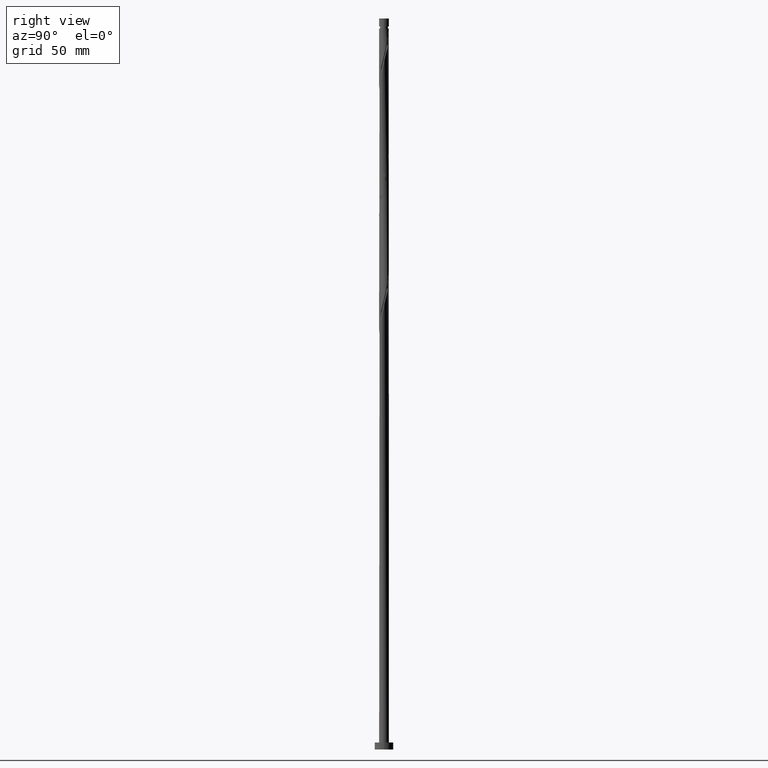
[diagram: clean part render]
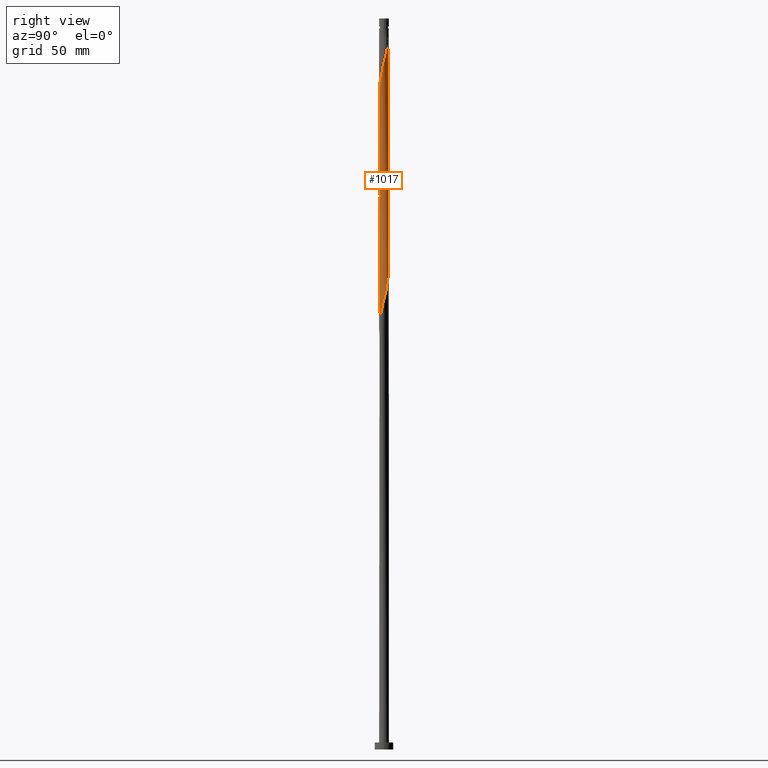
[diagram: same view with one face highlighted and labeled with its STEP entity id]
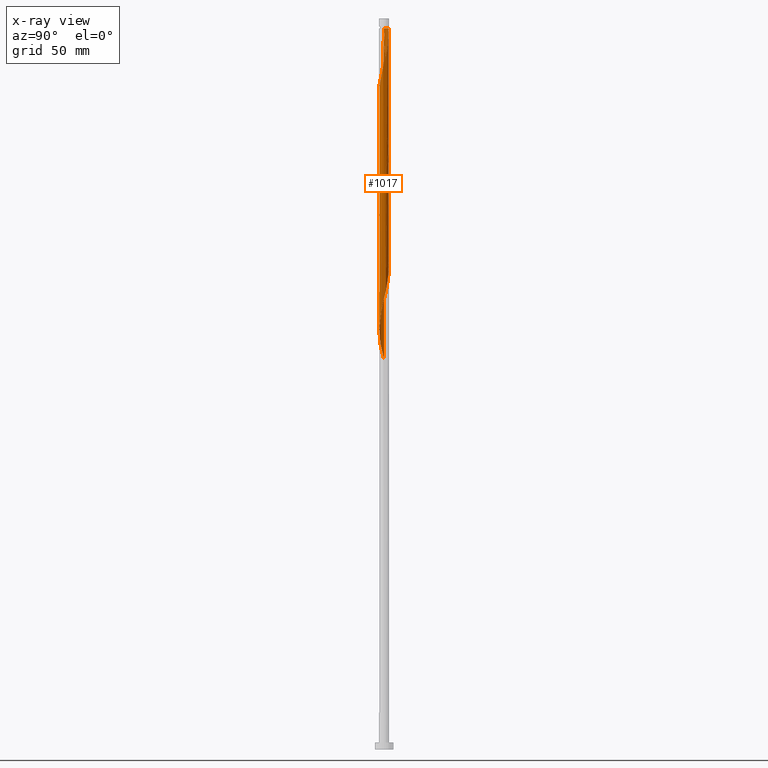
[diagram: x-ray of the same camera — body ghosted, the highlighted face saturated]
A machine part, right view. The second image highlights one B-rep face of the part: STEP entity #1017.
The next image is the same camera in x-ray: the body ghosted, the highlighted face saturated — about 0% of this face is hidden behind the body in this view.
In plain terms, the highlighted cylindrical surface (bore or boss wall) has radius 2.1 mm, axis along (-0, -0, -1).
Its self-contained STEP definition (entity closure, byte-faithful):
#5 = CARTESIAN_POINT ( 'NONE',  ( -1.529844344593004113, 1.457930751211417686, 214.1405337602938630 ) ) ;
#7 = CARTESIAN_POINT ( 'NONE',  ( -1.529844344593006999, -1.457930751211418796, 276.0155337602937493 ) ) ;
#14 = CARTESIAN_POINT ( 'NONE',  ( -1.348456092513518279, 1.609865263481131681, 213.2030337602938346 ) ) ;
#16 = CARTESIAN_POINT ( 'NONE',  ( 1.167067840434034665, 1.761799775750848118, 304.1405337602938062 ) ) ;
#23 = CARTESIAN_POINT ( 'NONE',  ( -1.457930751211417686, -1.529844344593004113, 227.2655337602938630 ) ) ;
#36 = CARTESIAN_POINT ( 'NONE',  ( 0.05053085170578196228, -2.099391967457693298, 233.8280337602938346 ) ) ;
#37 = CARTESIAN_POINT ( 'NONE',  ( -1.815908065240426472, -1.080954991017605060, 274.1405337602938062 ) ) ;
#45 = CARTESIAN_POINT ( 'NONE',  ( 0.2870755166819183857, -2.093698507840346945, 234.7655337602938346 ) ) ;
#46 = CARTESIAN_POINT ( 'NONE',  ( 2.105085427075044979, 0.1860138132703540170, 296.6405337602938630 ) ) ;
#54 = CARTESIAN_POINT ( 'NONE',  ( -1.269442871114510929, -1.672876204916714071, 175.7030337602938062 ) ) ;
#55 = CARTESIAN_POINT ( 'NONE',  ( -2.100000000000000089, 0.000000000000000000, 315.0000000000000000 ) ) ;
#62 = CARTESIAN_POINT ( 'NONE',  ( -1.869562289324891768, -0.9564187609694146941, 171.9530337602938630 ) ) ;
#63 = DIRECTION ( 'NONE',  ( -0.000000000000000000, -0.000000000000000000, -1.000000000000000000 ) ) ;
#69 = CARTESIAN_POINT ( 'NONE',  ( 2.010914572924957788, -0.6497756338992118907, 191.6405337602938346 ) ) ;
#78 = CARTESIAN_POINT ( 'NONE',  ( 2.099999999999999645, 3.156801099802694981E-15, 246.7525508381999089 ) ) ;
#85 = CARTESIAN_POINT ( 'NONE',  ( 1.672876204916714071, -1.269442871114510929, 188.8280337602938346 ) ) ;
#100 = CARTESIAN_POINT ( 'NONE',  ( -2.010914572924957788, 0.6497756338992114467, 270.3905337602938062 ) ) ;
#137 = CARTESIAN_POINT ( 'NONE',  ( -0.6497756338992115577, -2.010914572924957788, 231.0155337602938346 ) ) ;
#146 = CARTESIAN_POINT ( 'NONE',  ( -2.100000000000003197, 1.302273739753111854E-15, 269.6535166823878740 ) ) ;
#147 = CARTESIAN_POINT ( 'NONE',  ( 2.058000000000002938, 0.4178947235847829123, 297.5780337602939767 ) ) ;
#157 = CARTESIAN_POINT ( 'NONE',  ( 0.7457696815047972771, -1.977324802898936973, 236.6405337602938346 ) ) ;
#159 = CARTESIAN_POINT ( 'NONE',  ( 1.672876204916717180, 1.269442871114512705, 301.3280337602938062 ) ) ;
#162 = ORIENTED_EDGE ( 'NONE', *, *, #303, .T. ) ;
#166 = CARTESIAN_POINT ( 'NONE',  ( 1.269442871114511151, 1.672876204916714071, 201.9530337602938346 ) ) ;
#171 = VERTEX_POINT ( 'NONE', #1640 ) ;
#173 = DIRECTION ( 'NONE',  ( -0.000000000000000000, -0.000000000000000000, -1.000000000000000000 ) ) ;
#177 = CARTESIAN_POINT ( 'NONE',  ( -0.7457696815047991645, -1.977324802898939637, 279.7655337602938630 ) ) ;
#186 = CARTESIAN_POINT ( 'NONE',  ( -2.058000000000002938, -0.4178947235847831898, 271.3280337602938630 ) ) ;
#195 = CARTESIAN_POINT ( 'NONE',  ( 0.05053085170578196228, -2.099391967457693298, 181.3280337602938346 ) ) ;
#207 = CARTESIAN_POINT ( 'NONE',  ( -0.5164225990933580812, 2.035511655369642181, 261.9530337602938630 ) ) ;
#214 = CARTESIAN_POINT ( 'NONE',  ( 2.099999999999999645, 0.02526908404941727998, 246.8529135264250272 ) ) ;
#221 = CARTESIAN_POINT ( 'NONE',  ( -1.167067840434032222, 1.761799775750846120, 264.7655337602938062 ) ) ;
#228 = CARTESIAN_POINT ( 'NONE',  ( 1.761799775750846120, 1.167067840434032222, 251.6405337602938914 ) ) ;
#269 = CARTESIAN_POINT ( 'NONE',  ( 2.099999999999999645, 3.156801099802694981E-15, 246.7525508381999373 ) ) ;
#276 = CARTESIAN_POINT ( 'NONE',  ( 0.4178947235847834119, 2.057999999999998941, 205.7030337602938630 ) ) ;
#279 = CARTESIAN_POINT ( 'NONE',  ( 2.035511655369645290, -0.5164225990933597465, 293.8280337602938630 ) ) ;
#285 = CARTESIAN_POINT ( 'NONE',  ( 2.100000000000000089, -0.2110579412044373271, 245.9142797592363081 ) ) ;
#286 = CARTESIAN_POINT ( 'NONE',  ( 1.977324802898939637, -0.7457696815047991645, 292.8905337602938630 ) ) ;
#294 = CARTESIAN_POINT ( 'NONE',  ( 0.9564187609694145831, -1.869562289324891768, 237.5780337602938630 ) ) ;
#303 = EDGE_CURVE ( 'NONE', #171, #1288, #1602, .T. ) ;
#305 = CARTESIAN_POINT ( 'NONE',  ( 2.093698507840346501, 0.2870755166819183857, 195.3905337602939198 ) ) ;
#323 = CARTESIAN_POINT ( 'NONE',  ( 2.099391967457693298, 0.05053085170578187207, 194.4530337602938914 ) ) ;
#324 = CARTESIAN_POINT ( 'NONE',  ( 0.2870755166819201620, 2.093698507840350054, 307.8905337602938062 ) ) ;
#333 = CYLINDRICAL_SURFACE ( 'NONE', #1210, 2.100000000000000089 ) ;
#339 = CARTESIAN_POINT ( 'NONE',  ( 1.609865263481131903, 1.348456092513517834, 252.5780337602938630 ) ) ;
#342 = CARTESIAN_POINT ( 'NONE',  ( 1.913411319082690687, -0.8653653124584078649, 190.7030337602938346 ) ) ;
#357 = CARTESIAN_POINT ( 'NONE',  ( 0.1860138132703544611, 2.105085427075041427, 259.1405337602938062 ) ) ;
#386 = ORIENTED_EDGE ( 'NONE', *, *, #1414, .F. ) ;
#408 = CARTESIAN_POINT ( 'NONE',  ( 2.010914572924957788, -0.6497756338992118907, 244.1405337602938914 ) ) ;
#409 = DIRECTION ( 'NONE',  ( -1.000000000000000000, 0.000000000000000000, 0.000000000000000000 ) ) ;
#411 = CARTESIAN_POINT ( 'NONE',  ( 1.080954991017604838, -1.815908065240426472, 287.2655337602939198 ) ) ;
#417 = CARTESIAN_POINT ( 'NONE',  ( -0.7457696815047974992, 1.977324802898936973, 210.3905337602938346 ) ) ;
#419 = LINE ( 'NONE', #710, #888 ) ;
#427 = CARTESIAN_POINT ( 'NONE',  ( -2.035511655369642181, -0.5164225990933580812, 222.5780337602938630 ) ) ;
#429 = CARTESIAN_POINT ( 'NONE',  ( 0.1860138132703541558, -2.105085427075044979, 283.5155337602938630 ) ) ;
#438 = CARTESIAN_POINT ( 'NONE',  ( -1.815908065240423808, 1.080954991017603728, 268.5155337602939198 ) ) ;
#442 = CARTESIAN_POINT ( 'NONE',  ( 1.977324802898936973, 0.7457696815047970551, 197.2655337602938630 ) ) ;
#446 = CARTESIAN_POINT ( 'NONE',  ( 1.609865263481134123, -1.348456092513521387, 290.0780337602939767 ) ) ;
#455 = CARTESIAN_POINT ( 'NONE',  ( 1.529844344593006999, 1.457930751211418574, 302.2655337602937493 ) ) ;
#461 = CARTESIAN_POINT ( 'NONE',  ( 0.2870755166819183857, -2.093698507840346945, 182.2655337602938914 ) ) ;
#475 = ORIENTED_EDGE ( 'NONE', *, *, #1470, .F. ) ;
#479 = CARTESIAN_POINT ( 'NONE',  ( -2.099999999999999645, 2.488872734714418204E-15, 168.0025508381999089 ) ) ;
#482 = CARTESIAN_POINT ( 'NONE',  ( -0.2870755166819187743, 2.093698507840346945, 261.0155337602938630 ) ) ;
#486 = CARTESIAN_POINT ( 'NONE',  ( -0.6497756338992115577, -2.010914572924957788, 178.5155337602938914 ) ) ;
#548 = CARTESIAN_POINT ( 'NONE',  ( -1.167067840434032222, 1.761799775750846120, 212.2655337602938630 ) ) ;
#550 = CARTESIAN_POINT ( 'NONE',  ( -1.348456092513521387, -1.609865263481134345, 276.9530337602939767 ) ) ;
#559 = CARTESIAN_POINT ( 'NONE',  ( -1.815908065240423808, 1.080954991017603728, 216.0155337602938914 ) ) ;
#571 = CARTESIAN_POINT ( 'NONE',  ( -1.869562289324891768, -0.9564187609694146941, 224.4530337602938630 ) ) ;
#579 = VERTEX_POINT ( 'NONE', #146 ) ;
#583 = CARTESIAN_POINT ( 'NONE',  ( -0.1860138132703546832, -2.105085427075041427, 232.8905337602938062 ) ) ;
#584 = CARTESIAN_POINT ( 'NONE',  ( 0.6497756338992116687, -2.010914572924960897, 285.3905337602938630 ) ) ;
#590 = CARTESIAN_POINT ( 'NONE',  ( -1.529844344593004113, 1.457930751211417686, 266.6405337602938630 ) ) ;
#595 = CARTESIAN_POINT ( 'NONE',  ( 1.913411319082694018, 0.8653653124584083089, 299.4530337602938062 ) ) ;
#598 = ORIENTED_EDGE ( 'NONE', *, *, #1577, .T. ) ;
#601 = EDGE_CURVE ( 'NONE', #579, #1711, #1681, .T. ) ;
#603 = CARTESIAN_POINT ( 'NONE',  ( 1.167067840434032222, -1.761799775750846120, 186.0155337602938062 ) ) ;
#610 = EDGE_LOOP ( 'NONE', ( #386, #162, #475, #903, #1750, #1307, #598, #876 ) ) ;
#613 = CARTESIAN_POINT ( 'NONE',  ( -2.099391967457693298, -0.05053085170578208024, 168.2030337602938914 ) ) ;
#626 = LINE ( 'NONE', #1727, #1708 ) ;
#629 = CARTESIAN_POINT ( 'NONE',  ( 2.093698507840346501, 0.2870755166819183857, 247.8905337602939198 ) ) ;
#632 = CARTESIAN_POINT ( 'NONE',  ( 1.815908065240423364, -1.080954991017604172, 189.7655337602938630 ) ) ;
#637 = CARTESIAN_POINT ( 'NONE',  ( 0.6497756338992118907, 2.010914572924957788, 257.2655337602938062 ) ) ;
#647 = CARTESIAN_POINT ( 'NONE',  ( 1.977324802898936973, 0.7457696815047970551, 249.7655337602938346 ) ) ;
#660 = AXIS2_PLACEMENT_3D ( 'NONE', #1009, #1663, #409 ) ;
#688 = CARTESIAN_POINT ( 'NONE',  ( -1.080954991017603950, -1.815908065240423808, 229.1405337602938914 ) ) ;
#697 = CARTESIAN_POINT ( 'NONE',  ( 1.348456092513517834, -1.609865263481131903, 239.4530337602939198 ) ) ;
#699 = CARTESIAN_POINT ( 'NONE',  ( 2.010914572924960897, 0.6497756338992115577, 298.5155337602939198 ) ) ;
#703 = VERTEX_POINT ( 'NONE', #1142 ) ;
#709 = CARTESIAN_POINT ( 'NONE',  ( -1.269442871114510929, -1.672876204916714071, 228.2030337602938914 ) ) ;
#710 = CARTESIAN_POINT ( 'NONE',  ( -2.100000000000000089, 0.000000000000000000, 315.0000000000000000 ) ) ;
#718 = CARTESIAN_POINT ( 'NONE',  ( 1.457930751211417908, 1.529844344593003669, 201.0155337602938630 ) ) ;
#728 = CARTESIAN_POINT ( 'NONE',  ( 1.672876204916714071, -1.269442871114510929, 241.3280337602938914 ) ) ;
#730 = CARTESIAN_POINT ( 'NONE',  ( 2.093698507840350054, -0.2870755166819199955, 294.7655337602938630 ) ) ;
#740 = CARTESIAN_POINT ( 'NONE',  ( 0.05053085170578318353, 2.099391967457698183, 308.8280337602938630 ) ) ;
#749 = CARTESIAN_POINT ( 'NONE',  ( -0.1860138132703546832, -2.105085427075041427, 180.3905337602938346 ) ) ;
#754 = CARTESIAN_POINT ( 'NONE',  ( 2.057999999999998941, -0.4178947235847832453, 192.5780337602938630 ) ) ;
#761 = CARTESIAN_POINT ( 'NONE',  ( 0.7457696815047972771, -1.977324802898936973, 184.1405337602938630 ) ) ;
#769 = CARTESIAN_POINT ( 'NONE',  ( -1.977324802898936973, -0.7457696815047972771, 171.0155337602938914 ) ) ;
#772 = DIRECTION ( 'NONE',  ( -1.000000000000000000, 0.000000000000000000, 0.000000000000000000 ) ) ;
#826 = CARTESIAN_POINT ( 'NONE',  ( 0.5164225990933578592, -2.035511655369642181, 235.7030337602938914 ) ) ;
#835 = CARTESIAN_POINT ( 'NONE',  ( 0.8653653124584079759, 1.913411319082690465, 203.8280337602938346 ) ) ;
#837 = CARTESIAN_POINT ( 'NONE',  ( 1.269442871114512705, -1.672876204916717180, 288.2030337602938630 ) ) ;
#846 = CARTESIAN_POINT ( 'NONE',  ( -0.2870755166819187743, 2.093698507840346945, 208.5155337602938914 ) ) ;
#848 = CARTESIAN_POINT ( 'NONE',  ( 1.869562289324894211, -0.9564187609694171366, 291.9530337602939198 ) ) ;
#853 = VECTOR ( 'NONE', #1473, 1000.000000000000000 ) ;
#860 = CARTESIAN_POINT ( 'NONE',  ( -2.093698507840346945, -0.2870755166819185522, 221.6405337602938914 ) ) ;
#862 = CARTESIAN_POINT ( 'NONE',  ( 0.4178947235847830788, -2.058000000000002938, 284.4530337602938630 ) ) ;
#867 = FACE_OUTER_BOUND ( 'NONE', #610, .T. ) ;
#870 = CARTESIAN_POINT ( 'NONE',  ( -0.05053085170578218432, 2.099391967457693298, 207.5780337602938914 ) ) ;
#872 = CARTESIAN_POINT ( 'NONE',  ( -1.167067840434034665, -1.761799775750848340, 277.8905337602936925 ) ) ;
#876 = ORIENTED_EDGE ( 'NONE', *, *, #899, .F. ) ;
#888 = VECTOR ( 'NONE', #1294, 1000.000000000000000 ) ;
#896 = CARTESIAN_POINT ( 'NONE',  ( -1.348456092513518279, 1.609865263481131681, 265.7030337602939198 ) ) ;
#899 = EDGE_CURVE ( 'NONE', #1721, #1494, #1378, .T. ) ;
#903 = ORIENTED_EDGE ( 'NONE', *, *, #601, .T. ) ;
#904 = CARTESIAN_POINT ( 'NONE',  ( 2.035511655369642181, 0.5164225990933577481, 248.8280337602938346 ) ) ;
#909 = CARTESIAN_POINT ( 'NONE',  ( -2.035511655369642181, -0.5164225990933580812, 170.0780337602938062 ) ) ;
#922 = CARTESIAN_POINT ( 'NONE',  ( -0.05053085170578218432, 2.099391967457693298, 260.0780337602938630 ) ) ;
#973 = CARTESIAN_POINT ( 'NONE',  ( -0.5164225990933580812, 2.035511655369642181, 209.4530337602938346 ) ) ;
#975 = CARTESIAN_POINT ( 'NONE',  ( 1.761799775750848562, -1.167067840434034665, 291.0155337602938062 ) ) ;
#985 = CARTESIAN_POINT ( 'NONE',  ( 1.913411319082690687, -0.8653653124584078649, 243.2030337602938914 ) ) ;
#986 = CARTESIAN_POINT ( 'NONE',  ( -2.010914572924960897, -0.6497756338992116687, 272.2655337602938062 ) ) ;
#996 = CARTESIAN_POINT ( 'NONE',  ( -1.913411319082690687, 0.8653653124584076428, 216.9530337602938630 ) ) ;
#1004 = CARTESIAN_POINT ( 'NONE',  ( 2.099999999999999645, 3.156801099802694981E-15, 246.7525508381999373 ) ) ;
#1008 = CARTESIAN_POINT ( 'NONE',  ( 1.609865263481131903, 1.348456092513517834, 200.0780337602938630 ) ) ;
#1009 = CARTESIAN_POINT ( 'NONE',  ( 0.000000000000000000, 0.000000000000000000, 310.7030337602938630 ) ) ;
#1015 = CARTESIAN_POINT ( 'NONE',  ( 1.269442871114511151, 1.672876204916714071, 254.4530337602938914 ) ) ;
#1017 = ADVANCED_FACE ( 'NONE', ( #867 ), #333, .T. ) ;
#1019 = CARTESIAN_POINT ( 'NONE',  ( 1.529844344593004113, -1.457930751211417686, 187.8905337602938630 ) ) ;
#1020 = CARTESIAN_POINT ( 'NONE',  ( -0.4178947235848405883, 2.058000000000578034, 310.7030337602936925 ) ) ;
#1045 = CARTESIAN_POINT ( 'NONE',  ( 1.080954991017604172, 1.815908065240423364, 255.3905337602938630 ) ) ;
#1052 = CARTESIAN_POINT ( 'NONE',  ( 2.099391967457693298, 0.05053085170578187207, 246.9530337602938346 ) ) ;
#1061 = CARTESIAN_POINT ( 'NONE',  ( -2.100000000000000533, 0.2110579412044341074, 272.1642797592363650 ) ) ;
#1118 = CARTESIAN_POINT ( 'NONE',  ( -0.05053085170578285740, -2.099391967457697739, 282.5780337602938630 ) ) ;
#1126 = CARTESIAN_POINT ( 'NONE',  ( 2.057999999999998941, -0.4178947235847832453, 245.0780337602938630 ) ) ;
#1127 = CARTESIAN_POINT ( 'NONE',  ( 0.9564187609694171366, 1.869562289324894211, 305.0780337602938062 ) ) ;
#1136 = CARTESIAN_POINT ( 'NONE',  ( -1.977324802898936973, -0.7457696815047972771, 223.5155337602938346 ) ) ;
#1142 = CARTESIAN_POINT ( 'NONE',  ( 2.100000000000000089, 2.571758278209441957E-16, 310.7030337602938630 ) ) ;
#1145 = CARTESIAN_POINT ( 'NONE',  ( -0.4178947235847831898, -2.057999999999998941, 231.9530337602938630 ) ) ;
#1148 = CARTESIAN_POINT ( 'NONE',  ( 1.457930751211418796, -1.529844344593006999, 289.1405337602939198 ) ) ;
#1158 = CARTESIAN_POINT ( 'NONE',  ( -2.099391967457693298, -0.05053085170578208024, 220.7030337602938062 ) ) ;
#1159 = CARTESIAN_POINT ( 'NONE',  ( -2.100000000000003642, -0.2110579412044369663, 270.4917877613514747 ) ) ;
#1166 = CARTESIAN_POINT ( 'NONE',  ( -1.609865263481131237, -1.348456092513517834, 173.8280337602938630 ) ) ;
#1181 = CARTESIAN_POINT ( 'NONE',  ( -1.761799775750846120, -1.167067840434032222, 172.8905337602938062 ) ) ;
#1182 = CARTESIAN_POINT ( 'NONE',  ( -0.1860138132703539338, 2.105085427075044979, 309.7655337602938630 ) ) ;
#1184 = CARTESIAN_POINT ( 'NONE',  ( -2.057999999999998941, 0.4178947235847830788, 271.3280337602939198 ) ) ;
#1188 = CARTESIAN_POINT ( 'NONE',  ( -1.080954991017603950, -1.815908065240423808, 176.6405337602938346 ) ) ;
#1196 = CARTESIAN_POINT ( 'NONE',  ( -2.093698507840346945, -0.2870755166819185522, 169.1405337602938346 ) ) ;
#1201 = CARTESIAN_POINT ( 'NONE',  ( 0.000000000000000000, 0.000000000000000000, 315.0000000000000000 ) ) ;
#1210 = AXIS2_PLACEMENT_3D ( 'NONE', #1201, #173, #772 ) ;
#1212 = CARTESIAN_POINT ( 'NONE',  ( 0.4178947235847834119, 2.057999999999998941, 258.2030337602938630 ) ) ;
#1256 = CARTESIAN_POINT ( 'NONE',  ( -1.761799775750846120, -1.167067840434032222, 225.3905337602938062 ) ) ;
#1265 = CARTESIAN_POINT ( 'NONE',  ( -2.057999999999998941, 0.4178947235847830788, 218.8280337602938630 ) ) ;
#1266 = CARTESIAN_POINT ( 'NONE',  ( 1.348456092513521387, 1.609865263481134123, 303.2030337602938062 ) ) ;
#1268 =( BOUNDED_CURVE ( )  B_SPLINE_CURVE ( 2, ( #269, #285, #1126, #408, #985, #1292, #728, #1717, #697, #1693, #294, #157, #826, #45, #36, #583, #1145, #137, #1274, #688, #709, #23, #1544, #1256, #571, #1136, #427, #860, #1158, #1680, #1265, #1523, #996, #559, #1557, #5, #14, #548, #1671, #417, #973, #846, #870, #1533, #276, #1405, #835, #1416, #166, #718, #1008, #1704, #1396, #442, #1568, #305, #323, #1610, #754, #69, #342, #632, #85, #1019, #1458, #603, #1443, #761, #1733, #461, #195, #749, #1469, #486, #1756, #1188, #54, #1311, #1166, #1181, #62, #769, #909, #1196, #613, #1741, #1601 ),
 .UNSPECIFIED., .F., .T. ) 
 B_SPLINE_CURVE_WITH_KNOTS ( ( 3, 2, 2, 2, 2, 2, 2, 2, 2, 2, 2, 2, 2, 2, 2, 2, 2, 2, 2, 2, 2, 2, 2, 2, 2, 2, 2, 2, 2, 2, 2, 2, 2, 2, 2, 2, 2, 2, 2, 2, 2, 2, 2, 3 ),
 ( 0.5545303401299220836, 0.5625000000000000000, 0.5714285714285713969, 0.5803571428571429047, 0.5892857142857143016, 0.5982142857142856984, 0.6071428571428570953, 0.6160714285714286031, 0.6250000000000000000, 0.6339285714285713969, 0.6428571428571429047, 0.6517857142857143016, 0.6607142857142856984, 0.6696428571428570953, 0.6785714285714286031, 0.6875000000000000000, 0.6964285714285713969, 0.7053571428571429047, 0.7142857142857143016, 0.7232142857142856984, 0.7321428571428570953, 0.7410714285714286031, 0.7500000000000000000, 0.7589285714285713969, 0.7678571428571429047, 0.7767857142857143016, 0.7857142857142856984, 0.7946428571428570953, 0.8035714285714286031, 0.8125000000000000000, 0.8214285714285713969, 0.8303571428571429047, 0.8392857142857143016, 0.8482142857142856984, 0.8571428571428570953, 0.8660714285714286031, 0.8750000000000000000, 0.8839285714285713969, 0.8928571428571429047, 0.9017857142857141906, 0.9107142857142855874, 0.9196428571428569843, 0.9285714285714286031, 0.9295303401299221946 ),
 .UNSPECIFIED. ) 
 CURVE ( )  GEOMETRIC_REPRESENTATION_ITEM ( )  RATIONAL_B_SPLINE_CURVE ( ( 0.9079949616362285036, 0.9039886423360914414, 0.9090909090909583545, 0.9033747362666331160, 0.9090909090909583545, 0.9033747362666331160, 0.9090909090909583545, 0.9033747362666331160, 0.9090909090909583545, 0.9033747362666331160, 0.9090909090909583545, 0.9033747362666331160, 0.9090909090909583545, 0.9033747362666331160, 0.9090909090909583545, 0.9033747362666331160, 0.9090909090909583545, 0.9033747362666331160, 0.9090909090909583545, 0.9033747362666331160, 0.9090909090909583545, 0.9033747362666331160, 0.9090909090909583545, 0.9033747362666331160, 0.9090909090909583545, 0.9033747362666331160, 0.9090909090909583545, 0.9033747362666331160, 0.9090909090909583545, 0.9033747362666331160, 0.9090909090909583545, 0.9033747362666331160, 0.9090909090909583545, 0.9033747362666331160, 0.9090909090909583545, 0.9033747362666331160, 0.9090909090909583545, 0.9033747362666331160, 0.9090909090909583545, 0.9033747362666331160, 0.9090909090909583545, 0.9033747362666331160, 0.9090909090909583545, 0.9033747362666331160, 0.9090909090909583545, 0.9033747362666331160, 0.9090909090909583545, 0.9033747362666331160, 0.9090909090909583545, 0.9033747362666331160, 0.9090909090909583545, 0.9033747362666331160, 0.9090909090909583545, 0.9033747362666331160, 0.9090909090909583545, 0.9033747362666331160, 0.9090909090909583545, 0.9033747362666331160, 0.9090909090909583545, 0.9033747362666331160, 0.9090909090909583545, 0.9033747362666331160, 0.9090909090909583545, 0.9033747362666331160, 0.9090909090909583545, 0.9033747362666331160, 0.9090909090909583545, 0.9033747362666331160, 0.9090909090909583545, 0.9033747362666331160, 0.9090909090909583545, 0.9033747362666331160, 0.9090909090909583545, 0.9033747362666331160, 0.9090909090909583545, 0.9033747362666331160, 0.9090909090909583545, 0.9033747362666331160, 0.9090909090909583545, 0.9033747362666331160, 0.9090909090909583545, 0.9033747362666331160, 0.9090909090909583545, 0.9033747362666331160, 0.9090909090909583545, 0.9084770030215000292, 0.9079949616362282816 ) ) 
 REPRESENTATION_ITEM ( '' )  );
#1274 = CARTESIAN_POINT ( 'NONE',  ( -0.8653653124584078649, -1.913411319082690687, 230.0780337602938630 ) ) ;
#1277 =( BOUNDED_CURVE ( )  B_SPLINE_CURVE ( 2, ( #1435, #1159, #186, #986, #1284, #37, #1695, #7, #550, #872, #1427, #177, #1674, #1559, #1118, #429, #862, #584, #1535, #411, #837, #1148, #446, #975, #848, #286, #279, #730, #1406, #46, #147, #699, #595, #1718, #159, #455, #1266, #16, #1127, #1312, #1611, #324, #740, #1182, #1303 ),
 .UNSPECIFIED., .F., .T. ) 
 B_SPLINE_CURVE_WITH_KNOTS ( ( 3, 2, 2, 2, 2, 2, 2, 2, 2, 2, 2, 2, 2, 2, 2, 2, 2, 2, 2, 2, 2, 2, 3 ),
 ( 0.5545303401299220836, 0.5625000000000000000, 0.5714285714285713969, 0.5803571428571427937, 0.5892857142857143016, 0.5982142857142856984, 0.6071428571428572063, 0.6160714285714286031, 0.6250000000000000000, 0.6339285714285713969, 0.6428571428571427937, 0.6517857142857143016, 0.6607142857142856984, 0.6696428571428572063, 0.6785714285714286031, 0.6875000000000000000, 0.6964285714285713969, 0.7053571428571427937, 0.7142857142857143016, 0.7232142857142856984, 0.7321428571428572063, 0.7410714285714286031, 0.7500000000000000000 ),
 .UNSPECIFIED. ) 
 CURVE ( )  GEOMETRIC_REPRESENTATION_ITEM ( )  RATIONAL_B_SPLINE_CURVE ( ( 0.9079949616362349429, 0.9039886423360981027, 0.9090909090909650159, 0.9033747362666397773, 0.9090909090909650159, 0.9033747362666397773, 0.9090909090909650159, 0.9033747362666397773, 0.9090909090909650159, 0.9033747362666397773, 0.9090909090909650159, 0.9033747362666397773, 0.9090909090909650159, 0.9033747362666397773, 0.9090909090909650159, 0.9033747362666397773, 0.9090909090909650159, 0.9033747362666397773, 0.9090909090909650159, 0.9033747362666397773, 0.9090909090909650159, 0.9033747362666397773, 0.9090909090909650159, 0.9033747362666397773, 0.9090909090909650159, 0.9033747362666397773, 0.9090909090909650159, 0.9033747362666397773, 0.9090909090909650159, 0.9033747362666397773, 0.9090909090909650159, 0.9033747362666397773, 0.9090909090909650159, 0.9033747362666397773, 0.9090909090909650159, 0.9033747362666397773, 0.9090909090909650159, 0.9033747362666397773, 0.9090909090909650159, 0.9033747362666397773, 0.9090909090909650159, 0.9033747362666397773, 0.9090909090909650159, 0.9033747362666397773, 0.9090909090909650159 ) ) 
 REPRESENTATION_ITEM ( '' )  );
#1284 = CARTESIAN_POINT ( 'NONE',  ( -1.913411319082694018, -0.8653653124584085310, 273.2030337602938630 ) ) ;
#1288 = VERTEX_POINT ( 'NONE', #1020 ) ;
#1289 = CARTESIAN_POINT ( 'NONE',  ( 0.8653653124584079759, 1.913411319082690465, 256.3280337602938630 ) ) ;
#1292 = CARTESIAN_POINT ( 'NONE',  ( 1.815908065240423364, -1.080954991017604172, 242.2655337602938630 ) ) ;
#1294 = DIRECTION ( 'NONE',  ( -0.000000000000000000, -0.000000000000000000, -1.000000000000000000 ) ) ;
#1303 = CARTESIAN_POINT ( 'NONE',  ( -0.4178947235848405883, 2.058000000000578034, 310.7030337602936925 ) ) ;
#1307 = ORIENTED_EDGE ( 'NONE', *, *, #1577, .F. ) ;
#1311 = CARTESIAN_POINT ( 'NONE',  ( -1.457930751211417686, -1.529844344593004113, 174.7655337602938914 ) ) ;
#1312 = CARTESIAN_POINT ( 'NONE',  ( 0.7457696815047992756, 1.977324802898939637, 306.0155337602938630 ) ) ;
#1328 = CARTESIAN_POINT ( 'NONE',  ( -2.099999999999999645, -7.574830062174316660E-16, 273.0025508381999657 ) ) ;
#1343 = CARTESIAN_POINT ( 'NONE',  ( -1.913411319082690687, 0.8653653124584076428, 269.4530337602938630 ) ) ;
#1378 =( BOUNDED_CURVE ( )  B_SPLINE_CURVE ( 2, ( #1328, #1061, #1184, #100, #1343, #438, #1474, #590, #896, #221, #1744, #1712, #207, #482, #922, #357, #1212, #637, #1289, #1045, #1015, #1573, #339, #228, #1484, #647, #904, #629, #1052, #214, #1004 ),
 .UNSPECIFIED., .F., .T. ) 
 B_SPLINE_CURVE_WITH_KNOTS ( ( 3, 2, 2, 2, 2, 2, 2, 2, 2, 2, 2, 2, 2, 2, 2, 3 ),
 ( 0.4295303401299219170, 0.4375000000000000000, 0.4464285714285714524, 0.4553571428571428492, 0.4642857142857143016, 0.4732142857142856984, 0.4821428571428571508, 0.4910714285714285476, 0.5000000000000000000, 0.5089285714285713969, 0.5178571428571429047, 0.5267857142857143016, 0.5357142857142856984, 0.5446428571428570953, 0.5535714285714286031, 0.5545303401299220836 ),
 .UNSPECIFIED. ) 
 CURVE ( )  GEOMETRIC_REPRESENTATION_ITEM ( )  RATIONAL_B_SPLINE_CURVE ( ( 0.9079949616362285036, 0.9039886423360913303, 0.9090909090909583545, 0.9033747362666331160, 0.9090909090909583545, 0.9033747362666331160, 0.9090909090909583545, 0.9033747362666331160, 0.9090909090909583545, 0.9033747362666331160, 0.9090909090909583545, 0.9033747362666331160, 0.9090909090909583545, 0.9033747362666331160, 0.9090909090909583545, 0.9033747362666331160, 0.9090909090909583545, 0.9033747362666331160, 0.9090909090909583545, 0.9033747362666331160, 0.9090909090909583545, 0.9033747362666331160, 0.9090909090909583545, 0.9033747362666331160, 0.9090909090909583545, 0.9033747362666331160, 0.9090909090909583545, 0.9033747362666331160, 0.9090909090909583545, 0.9084770030215001402, 0.9079949616362285036 ) ) 
 REPRESENTATION_ITEM ( '' )  );
#1396 = CARTESIAN_POINT ( 'NONE',  ( 1.869562289324891768, 0.9564187609694145831, 198.2030337602938630 ) ) ;
#1405 = CARTESIAN_POINT ( 'NONE',  ( 0.6497756338992118907, 2.010914572924957788, 204.7655337602938914 ) ) ;
#1406 = CARTESIAN_POINT ( 'NONE',  ( 2.099391967457697739, -0.05053085170578303087, 295.7030337602939198 ) ) ;
#1414 = EDGE_CURVE ( 'NONE', #171, #1721, #419, .T. ) ;
#1416 = CARTESIAN_POINT ( 'NONE',  ( 1.080954991017604172, 1.815908065240423364, 202.8905337602939198 ) ) ;
#1427 = CARTESIAN_POINT ( 'NONE',  ( -0.9564187609694171366, -1.869562289324894211, 278.8280337602939767 ) ) ;
#1433 = CARTESIAN_POINT ( 'NONE',  ( -2.099999999999999645, -7.574830062174316660E-16, 273.0025508381999657 ) ) ;
#1435 = CARTESIAN_POINT ( 'NONE',  ( -2.100000000000003197, 1.302273739753111854E-15, 269.6535166823878740 ) ) ;
#1443 = CARTESIAN_POINT ( 'NONE',  ( 0.9564187609694145831, -1.869562289324891768, 185.0780337602938914 ) ) ;
#1458 = CARTESIAN_POINT ( 'NONE',  ( 1.348456092513517834, -1.609865263481131903, 186.9530337602938346 ) ) ;
#1469 = CARTESIAN_POINT ( 'NONE',  ( -0.4178947235847831898, -2.057999999999998941, 179.4530337602938630 ) ) ;
#1470 = EDGE_CURVE ( 'NONE', #579, #1288, #1277, .T. ) ;
#1473 = DIRECTION ( 'NONE',  ( -0.000000000000000000, -0.000000000000000000, -1.000000000000000000 ) ) ;
#1474 = CARTESIAN_POINT ( 'NONE',  ( -1.672876204916714071, 1.269442871114510485, 267.5780337602938630 ) ) ;
#1484 = CARTESIAN_POINT ( 'NONE',  ( 1.869562289324891768, 0.9564187609694145831, 250.7030337602938062 ) ) ;
#1494 = VERTEX_POINT ( 'NONE', #78 ) ;
#1523 = CARTESIAN_POINT ( 'NONE',  ( -2.010914572924957788, 0.6497756338992114467, 217.8905337602938630 ) ) ;
#1533 = CARTESIAN_POINT ( 'NONE',  ( 0.1860138132703544611, 2.105085427075041427, 206.6405337602938914 ) ) ;
#1535 = CARTESIAN_POINT ( 'NONE',  ( 0.8653653124584083089, -1.913411319082694018, 286.3280337602938630 ) ) ;
#1544 = CARTESIAN_POINT ( 'NONE',  ( -1.609865263481131237, -1.348456092513517834, 226.3280337602938914 ) ) ;
#1557 = CARTESIAN_POINT ( 'NONE',  ( -1.672876204916714071, 1.269442871114510485, 215.0780337602938630 ) ) ;
#1559 = CARTESIAN_POINT ( 'NONE',  ( -0.2870755166819198290, -2.093698507840350498, 281.6405337602939198 ) ) ;
#1568 = CARTESIAN_POINT ( 'NONE',  ( 2.035511655369642181, 0.5164225990933577481, 196.3280337602938630 ) ) ;
#1573 = CARTESIAN_POINT ( 'NONE',  ( 1.457930751211417908, 1.529844344593003669, 253.5155337602938346 ) ) ;
#1577 = EDGE_CURVE ( 'NONE', #703, #1494, #626, .T. ) ;
#1601 = CARTESIAN_POINT ( 'NONE',  ( -2.099999999999999645, 2.488872734714418599E-15, 168.0025508381999089 ) ) ;
#1602 = CIRCLE ( 'NONE', #660, 2.099999999999974332 ) ;
#1610 = CARTESIAN_POINT ( 'NONE',  ( 2.105085427075041427, -0.1860138132703548219, 193.5155337602938062 ) ) ;
#1611 = CARTESIAN_POINT ( 'NONE',  ( 0.5164225990933598576, 2.035511655369645290, 306.9530337602939198 ) ) ;
#1629 = EDGE_CURVE ( 'NONE', #1494, #1711, #1268, .T. ) ;
#1640 = CARTESIAN_POINT ( 'NONE',  ( -2.099999999999974332, 0.000000000000000000, 310.7030337602938630 ) ) ;
#1663 = DIRECTION ( 'NONE',  ( -0.000000000000000000, -0.000000000000000000, -1.000000000000000000 ) ) ;
#1671 = CARTESIAN_POINT ( 'NONE',  ( -0.9564187609694146941, 1.869562289324891546, 211.3280337602938630 ) ) ;
#1674 = CARTESIAN_POINT ( 'NONE',  ( -0.5164225990933595245, -2.035511655369645290, 280.7030337602938062 ) ) ;
#1680 = CARTESIAN_POINT ( 'NONE',  ( -2.105085427075041427, 0.1860138132703545721, 219.7655337602938346 ) ) ;
#1681 = LINE ( 'NONE', #55, #853 ) ;
#1693 = CARTESIAN_POINT ( 'NONE',  ( 1.167067840434032222, -1.761799775750846120, 238.5155337602938630 ) ) ;
#1695 = CARTESIAN_POINT ( 'NONE',  ( -1.672876204916717180, -1.269442871114512705, 275.0780337602937493 ) ) ;
#1704 = CARTESIAN_POINT ( 'NONE',  ( 1.761799775750846120, 1.167067840434032222, 199.1405337602938062 ) ) ;
#1708 = VECTOR ( 'NONE', #63, 1000.000000000000000 ) ;
#1711 = VERTEX_POINT ( 'NONE', #479 ) ;
#1712 = CARTESIAN_POINT ( 'NONE',  ( -0.7457696815047974992, 1.977324802898936973, 262.8905337602938630 ) ) ;
#1717 = CARTESIAN_POINT ( 'NONE',  ( 1.529844344593004113, -1.457930751211417686, 240.3905337602938346 ) ) ;
#1718 = CARTESIAN_POINT ( 'NONE',  ( 1.815908065240426472, 1.080954991017604838, 300.3905337602938062 ) ) ;
#1721 = VERTEX_POINT ( 'NONE', #1433 ) ;
#1727 = CARTESIAN_POINT ( 'NONE',  ( 2.100000000000000089, 2.571758278209441957E-16, 315.0000000000000000 ) ) ;
#1733 = CARTESIAN_POINT ( 'NONE',  ( 0.5164225990933578592, -2.035511655369642181, 183.2030337602938630 ) ) ;
#1741 = CARTESIAN_POINT ( 'NONE',  ( -2.100000000000000089, -0.02526908404941456687, 168.1029135264249987 ) ) ;
#1744 = CARTESIAN_POINT ( 'NONE',  ( -0.9564187609694146941, 1.869562289324891546, 263.8280337602938630 ) ) ;
#1750 = ORIENTED_EDGE ( 'NONE', *, *, #1629, .F. ) ;
#1756 = CARTESIAN_POINT ( 'NONE',  ( -0.8653653124584078649, -1.913411319082690687, 177.5780337602938630 ) ) ;